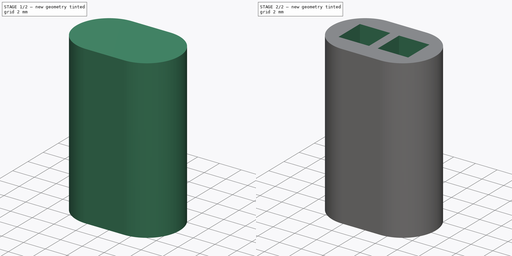
[diagram: build sequence overview — one tinted view per stage of 2, left to right]
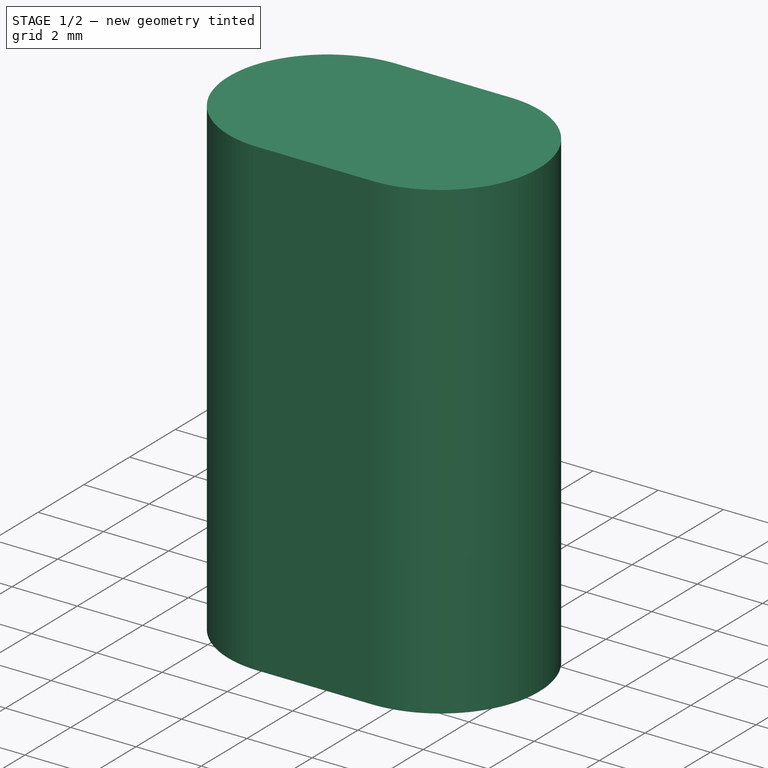
[diagram: stage 1 of 2 — iso view after this stage's code; geometry added in this stage tinted green]
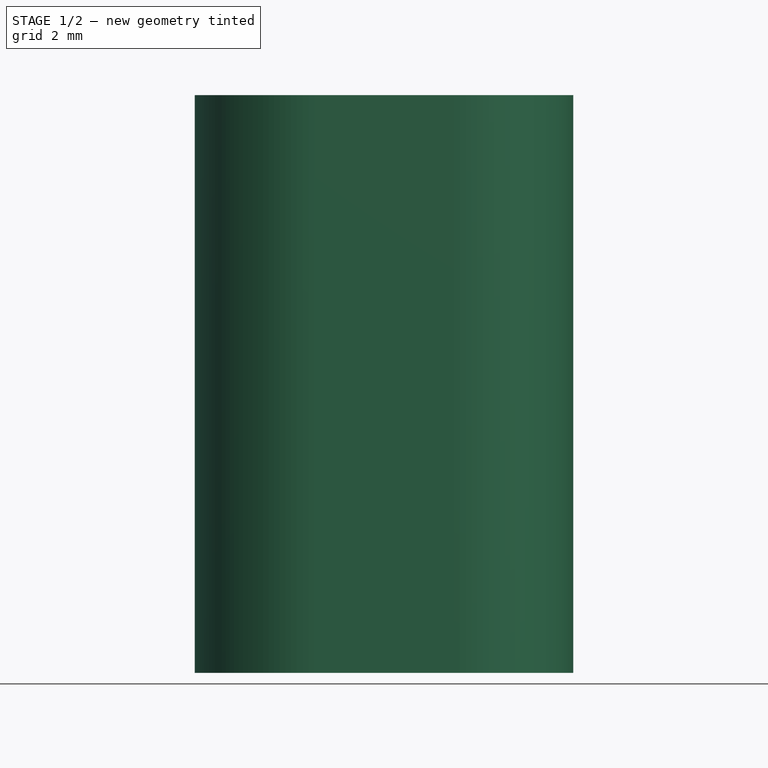
[diagram: stage 1 of 2 — front view after this stage's code; geometry added in this stage tinted green]
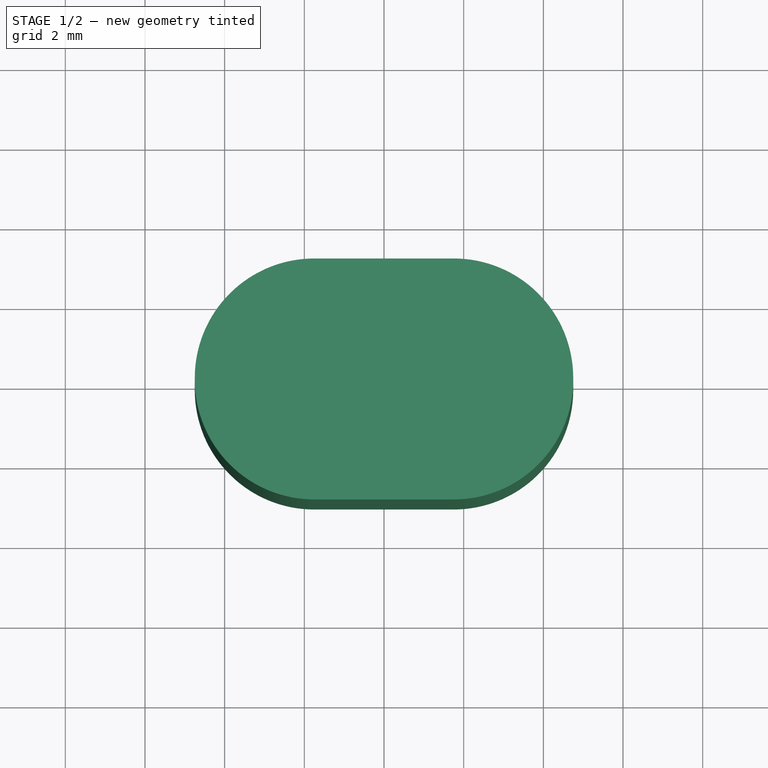
[diagram: stage 1 of 2 — top view after this stage's code; geometry added in this stage tinted green]
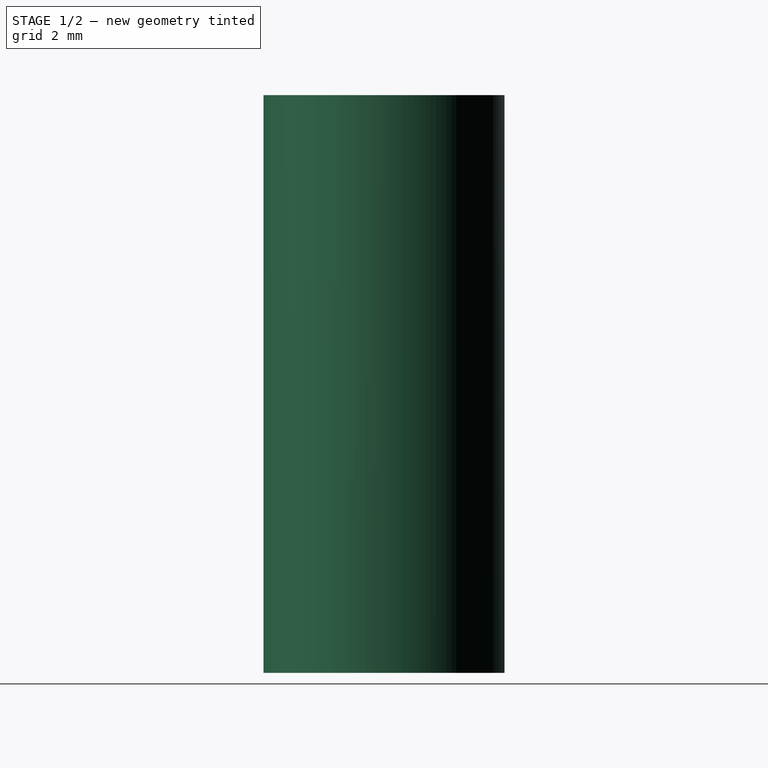
[diagram: stage 1 of 2 — right view after this stage's code; geometry added in this stage tinted green]
FCSTD DOCUMENT  (FreeCAD 1.0R39319 (Git))
Label: presa_elettrica
License: All rights reserved
objects: Sketcher::SketchObject×4, PartDesign::Pocket×2, PartDesign::Pad×1, PartDesign::Fillet×1, PartDesign::Body×1
note: 21 computed .brp shape members not serialized (recipe doc carries the construction recipe); baked Part::Feature solids carry a one-line shape summary decoded from their .brp

FEATURE [Sketcher::SketchObject] Sketch
  ArcFitTolerance = 1e-06
  AttachmentSupport = -> [XY_Plane]
  FullyConstrained = true
  MakeInternals = false
  MapMode = 5
  sketch-geometry (4):
    g0: LineSegment StartX=-4.75 StartY=3.025 StartZ=0 EndX=-4.75 EndY=-3.025 EndZ=0
    g1: LineSegment StartX=-4.75 StartY=-3.025 StartZ=0 EndX=4.75 EndY=-3.025 EndZ=0
    g2: LineSegment StartX=4.75 StartY=-3.025 StartZ=0 EndX=4.75 EndY=3.025 EndZ=0
    g3: LineSegment StartX=4.75 StartY=3.025 StartZ=0 EndX=-4.75 EndY=3.025 EndZ=0
  constraints (10):
    c: Coincident(g0,g1)
    c: Coincident(g1,g2)
    c: Coincident(g2,g3)
    c: Coincident(g3,g0)
    c: Vertical(g2)
    c: Horizontal(g1)
    c: Distance(g0,g2) = 9.5
    c: DistanceY(g0,g0) = 6.05
    c: Symmetric(g0,g2,g-2)
    c: Symmetric(g0,g0,g-1)
FEATURE [PartDesign::Pad] Pad
  Direction = (0,0,1)
  Length = 14.5
  Length2 = 10
  Profile = -> Sketch
  ReferenceAxis = -> Sketch [N_Axis]
  Refine = true
  Suppressed = false
  Type = 0
FEATURE [PartDesign::Fillet] Fillet
  Base = -> Pad [Edge2,Edge5,Edge8,Edge1]
  BaseFeature = -> Pad
  Radius = 3
  Refine = true
  SupportTransform = false
  Suppressed = false
  UseAllEdges = false
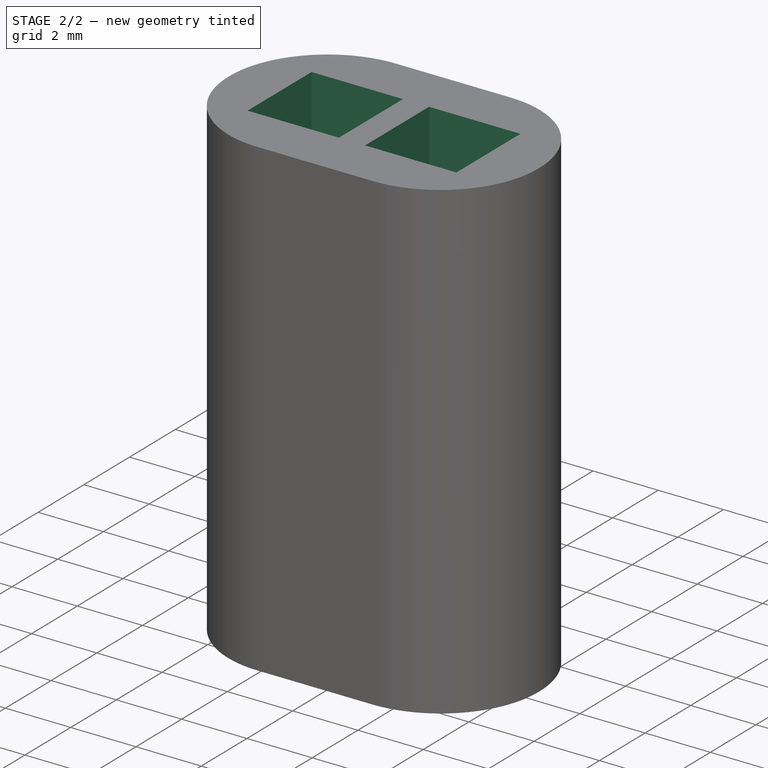
[diagram: stage 2 of 2 — iso view after this stage's code; geometry added in this stage tinted green]
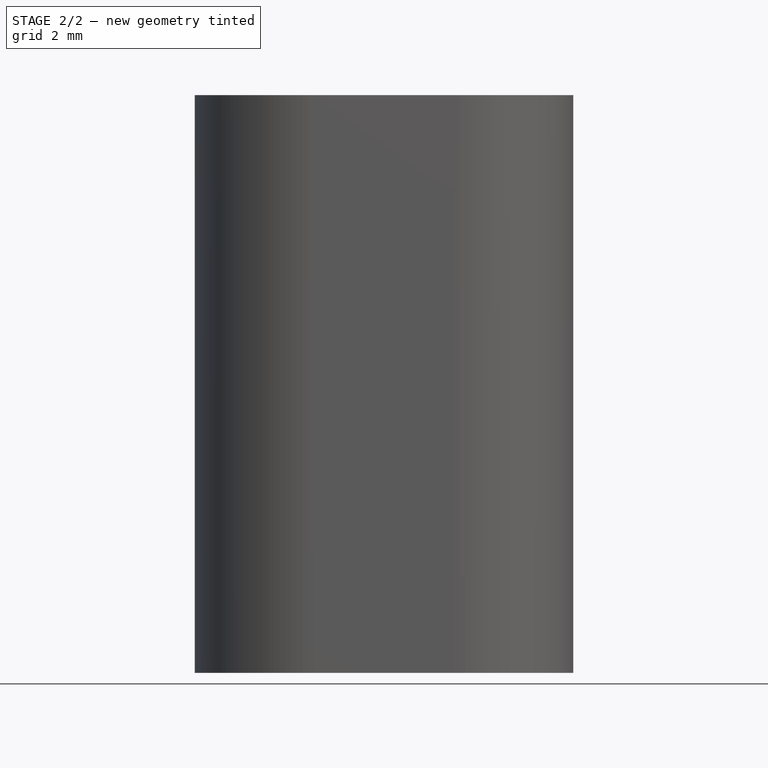
[diagram: stage 2 of 2 — front view after this stage's code; geometry added in this stage tinted green]
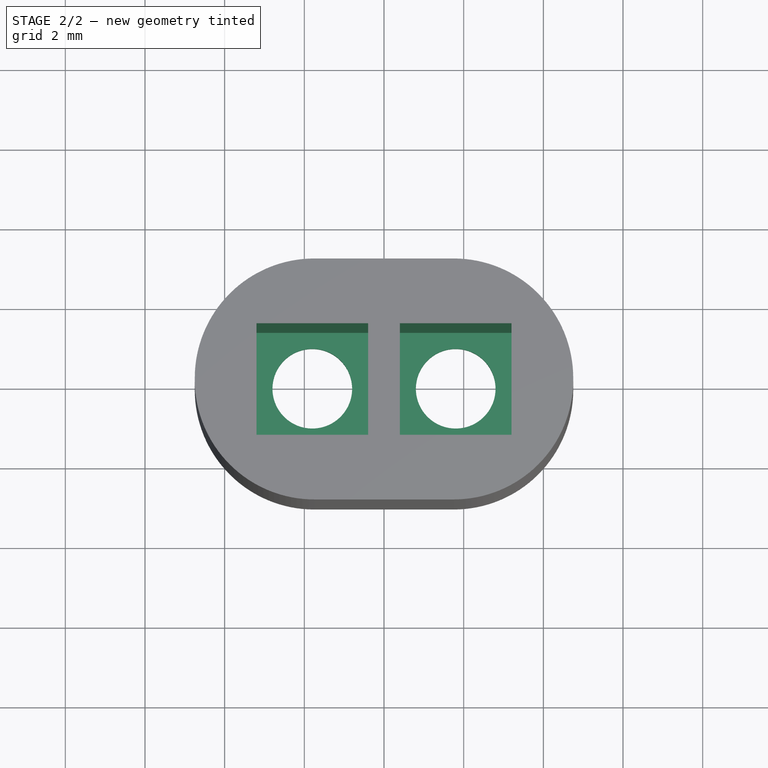
[diagram: stage 2 of 2 — top view after this stage's code; geometry added in this stage tinted green]
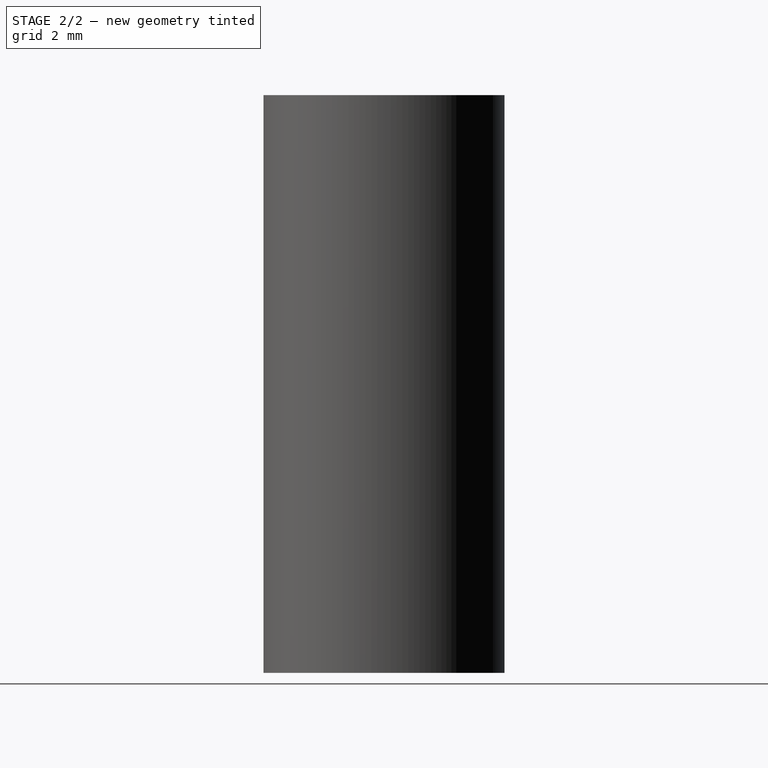
[diagram: stage 2 of 2 — right view after this stage's code; geometry added in this stage tinted green]
FEATURE [Sketcher::SketchObject] Sketch001
  ArcFitTolerance = 1e-06
  AttachmentSupport = -> [Fillet]
  FullyConstrained = true
  MakeInternals = false
  MapMode = 5
  Placement = pos=(0,0,0) rot=(1,0,0;3.14159rad)
  sketch-geometry (2):
    g0: Circle CenterX=1.8 CenterY=0 CenterZ=0 NormalX=0 NormalY=0 NormalZ=1 AngleXU=0 Radius=1
    g1: Circle CenterX=-1.8 CenterY=0 CenterZ=0 NormalX=0 NormalY=0 NormalZ=1 AngleXU=0 Radius=1
  constraints (5):
    c: Diameter(g0) = 2
    c: PointOnObject(g0,g-1)
    c: Diameter(g1) = 2
    c: Symmetric(g1,g0,g-2)
    c: DistanceX(g1,g-1) = 1.8
FEATURE [PartDesign::Pocket] Pocket
  BaseFeature = -> Fillet
  Direction = (0,0,1)
  Length = 0.5
  Length2 = 5
  Profile = -> Sketch001
  ReferenceAxis = -> Sketch001 [N_Axis]
  Refine = true
  Suppressed = false
  Type = 0
FEATURE [Sketcher::SketchObject] Sketch002
  ArcFitTolerance = 1e-06
  AttachmentSupport = -> [Pocket]
  FullyConstrained = true
  MakeInternals = false
  MapMode = 5
  Placement = pos=(0,0,14.5) rot=(0,0,1;0rad)
FEATURE [Sketcher::SketchObject] Sketch003
  ArcFitTolerance = 1e-06
  AttachmentSupport = -> [Pocket]
  ExternalGeometry = -> [Pocket]
  FullyConstrained = true
  MakeInternals = false
  MapMode = 5
  Placement = pos=(0,0,0.5) rot=(1,0,0;3.14159rad)
  sketch-geometry (14):
    g0: LineSegment StartX=0.4 StartY=1.4 StartZ=0 EndX=0.4 EndY=-1.4 EndZ=0
    g1: LineSegment StartX=0.4 StartY=-1.4 StartZ=0 EndX=3.2 EndY=-1.4 EndZ=0
    g2: LineSegment StartX=3.2 StartY=-1.4 StartZ=0 EndX=3.2 EndY=1.4 EndZ=0
    g3: LineSegment StartX=3.2 StartY=1.4 StartZ=0 EndX=0.4 EndY=1.4 EndZ=0
    g4: LineSegment StartX=-3.2 StartY=1.4 StartZ=0 EndX=-3.2 EndY=-1.4 EndZ=0
    g5: LineSegment StartX=-3.2 StartY=-1.4 StartZ=0 EndX=-0.4 EndY=-1.4 EndZ=0
    g6: LineSegment StartX=-0.4 StartY=-1.4 StartZ=0 EndX=-0.4 EndY=1.4 EndZ=0
    g7: LineSegment StartX=-0.4 StartY=1.4 StartZ=0 EndX=-3.2 EndY=1.4 EndZ=0
    g8: LineSegment [constr] StartX=-3.2 StartY=1.4 StartZ=0 EndX=-0.4 EndY=-1.4 EndZ=0
    g9: LineSegment [constr] StartX=-0.4 StartY=1.4 StartZ=0 EndX=-3.2 EndY=-1.4 EndZ=0
    g10: LineSegment [constr] StartX=0.4 StartY=1.4 StartZ=0 EndX=3.2 EndY=-1.4 EndZ=0
    g11: LineSegment [constr] StartX=3.2 StartY=1.4 StartZ=0 EndX=0.4 EndY=-1.4 EndZ=0
    g12: GeomPoint [constr] X=-1.8 Y=0 Z=0
    g13: GeomPoint [constr] X=1.8 Y=0 Z=0
  constraints (34):
    c: Coincident(g0,g1)
    c: Coincident(g1,g2)
    c: Coincident(g2,g3)
    c: Coincident(g3,g0)
    c: Vertical(g0)
    c: Vertical(g2)
    c: Horizontal(g1)
    c: Horizontal(g3)
    c: Coincident(g4,g5)
    c: Coincident(g5,g6)
    c: Coincident(g6,g7)
    c: Coincident(g7,g4)
    c: Vertical(g4)
    c: Vertical(g6)
    c: Horizontal(g5)
    c: Horizontal(g7)
    c: Coincident(g8,g4)
    c: Coincident(g8,g5)
    c: Coincident(g9,g6)
    c: Coincident(g9,g4)
    c: Coincident(g10,g0)
    c: Coincident(g10,g1)
    c: Coincident(g11,g2)
    c: Coincident(g11,g0)
    c: PointOnObject(g12,g8)
    c: PointOnObject(g13,g11)
    c: PointOnObject(g12,g9)
    c: PointOnObject(g13,g10)
    c: Equal(g7,g6)
    c: Equal(g3,g0)
    c: Equal(g0,g7)
    c: DistanceX(g4,g6) = 2.8
    c: Coincident(g12,g-4)
    c: Coincident(g13,g-3)
FEATURE [PartDesign::Pocket] Pocket001
  BaseFeature = -> Pocket
  Direction = (0,0,1)
  Length = 14
  Length2 = 5
  Profile = -> Sketch003
  ReferenceAxis = -> Sketch003 [N_Axis]
  Refine = true
  Suppressed = false
  Type = 0
FEATURE [PartDesign::Body] Body
  AllowCompound = false
  Group = -> [Sketch,Pad,Fillet,Sketch001,Pocket,Sketch002,Sketch003,Pocket001]
  Origin = -> Origin
  Tip = -> Pocket001
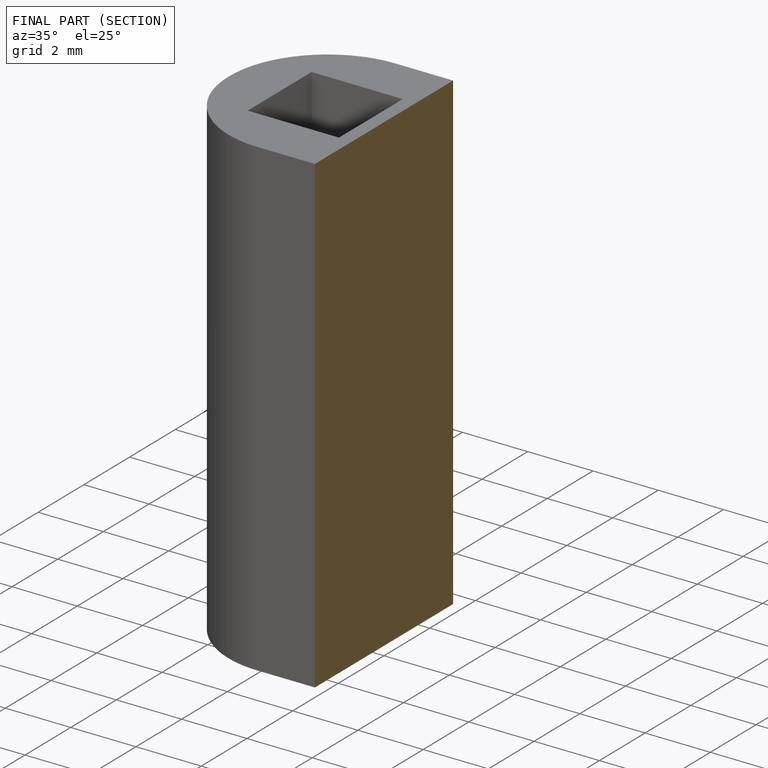
[diagram: finished part — half-section view (interior)]
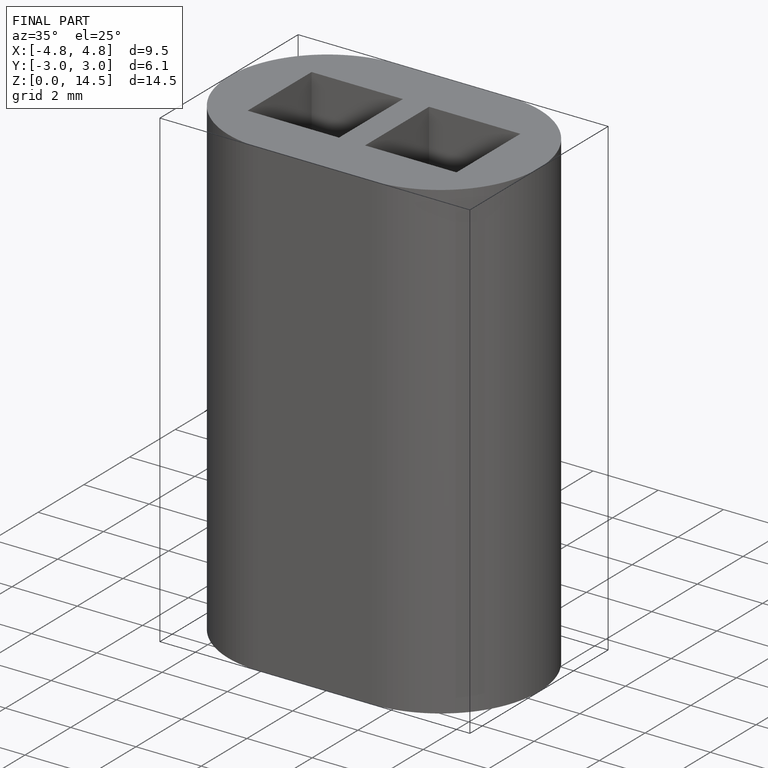
[diagram: finished part — iso view with bounding-box wireframe]
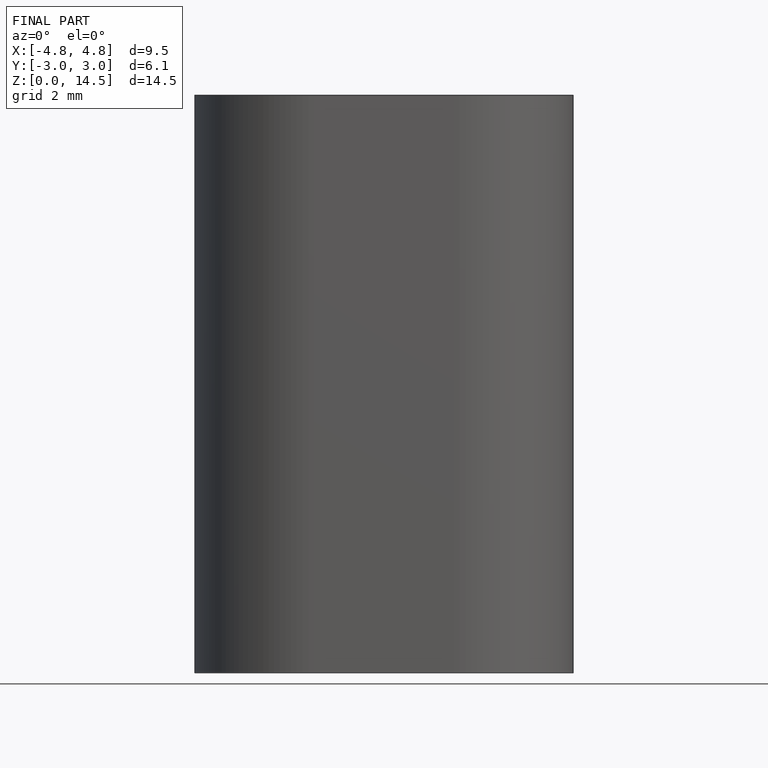
[diagram: finished part — front view with bounding-box wireframe]
